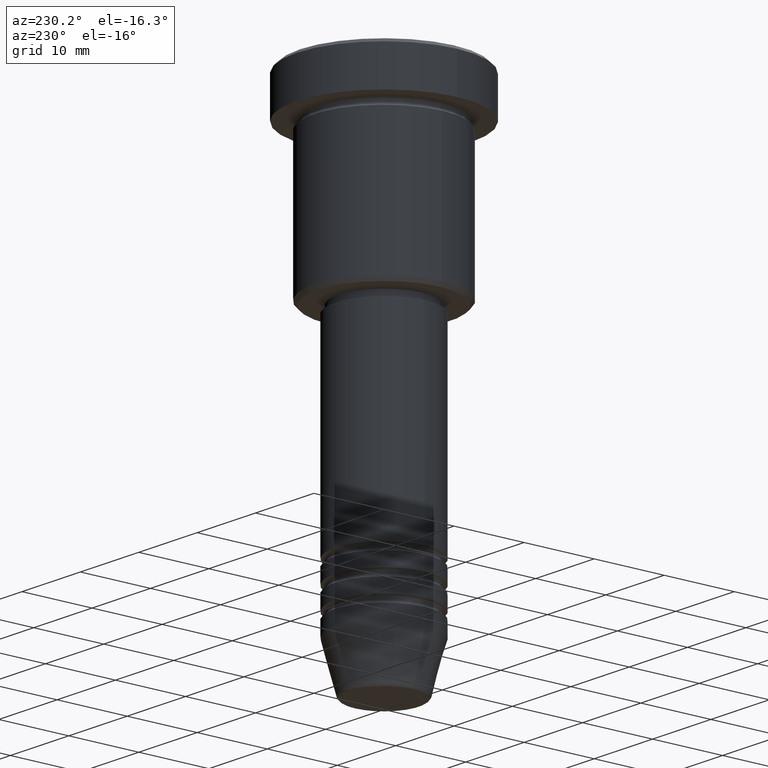
[diagram: clean part render]
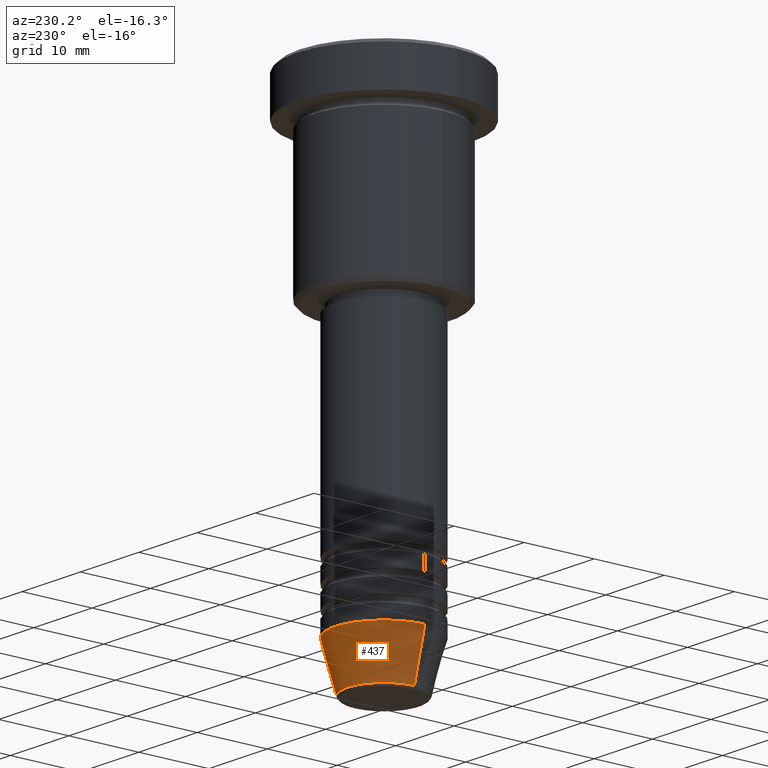
[diagram: same view with one face highlighted and labeled with its STEP entity id]
A machine part, auxiliary view. The second image highlights one B-rep face of the part: STEP entity #437.
In plain terms, the highlighted conical surface has half-angle 15 deg.
Its self-contained STEP definition (entity closure, byte-faithful):
#24 = CARTESIAN_POINT ( 'NONE',  ( 7.000000000000000000, 0.000000000000000000, -65.00000000000000000 ) ) ;
#43 = ORIENTED_EDGE ( 'NONE', *, *, #978, .T. ) ;
#101 = DIRECTION ( 'NONE',  ( -0.000000000000000000, -0.000000000000000000, 1.000000000000000000 ) ) ;
#121 = CIRCLE ( 'NONE', #790, 5.223655072137187716 ) ;
#147 = VERTEX_POINT ( 'NONE', #24 ) ;
#168 = DIRECTION ( 'NONE',  ( -0.000000000000000000, -0.000000000000000000, 1.000000000000000000 ) ) ;
#199 = VECTOR ( 'NONE', #747, 1000.000000000000000 ) ;
#215 = EDGE_LOOP ( 'NONE', ( #43, #891, #1156, #603 ) ) ;
#219 = CARTESIAN_POINT ( 'NONE',  ( 7.000000000000000000, 0.000000000000000000, -65.00000000000000000 ) ) ;
#437 = ADVANCED_FACE ( 'NONE', ( #935 ), #820, .T. ) ;
#504 = CARTESIAN_POINT ( 'NONE',  ( 0.000000000000000000, 0.000000000000000000, -71.62940952255127058 ) ) ;
#508 = VERTEX_POINT ( 'NONE', #1146 ) ;
#516 = VERTEX_POINT ( 'NONE', #608 ) ;
#573 = DIRECTION ( 'NONE',  ( 0.2588190451025214056, 0.000000000000000000, 0.9659258262890680902 ) ) ;
#603 = ORIENTED_EDGE ( 'NONE', *, *, #844, .F. ) ;
#608 = CARTESIAN_POINT ( 'NONE',  ( 5.223655072137187716, 0.000000000000000000, -71.62940952255127058 ) ) ;
#614 = CARTESIAN_POINT ( 'NONE',  ( 0.000000000000000000, 0.000000000000000000, -65.00000000000000000 ) ) ;
#651 = EDGE_CURVE ( 'NONE', #147, #508, #712, .T. ) ;
#683 = DIRECTION ( 'NONE',  ( -0.000000000000000000, -0.000000000000000000, 1.000000000000000000 ) ) ;
#689 = DIRECTION ( 'NONE',  ( 1.000000000000000000, 0.000000000000000000, 0.000000000000000000 ) ) ;
#693 = EDGE_CURVE ( 'NONE', #1177, #508, #1027, .T. ) ;
#712 = CIRCLE ( 'NONE', #1132, 7.000000000000000000 ) ;
#744 = AXIS2_PLACEMENT_3D ( 'NONE', #614, #683, #893 ) ;
#747 = DIRECTION ( 'NONE',  ( -0.2588190451025214056, 3.169619151431772953E-17, 0.9659258262890680902 ) ) ;
#752 = VECTOR ( 'NONE', #573, 1000.000000000000000 ) ;
#777 = LINE ( 'NONE', #219, #752 ) ;
#790 = AXIS2_PLACEMENT_3D ( 'NONE', #504, #168, #689 ) ;
#820 = CONICAL_SURFACE ( 'NONE', #744, 7.000000000000000000, 0.2617993877991501295 ) ;
#821 = CARTESIAN_POINT ( 'NONE',  ( -5.223655072137187716, 7.484830028987059188E-16, -71.62940952255127058 ) ) ;
#828 = CARTESIAN_POINT ( 'NONE',  ( 0.000000000000000000, 0.000000000000000000, -65.00000000000000000 ) ) ;
#844 = EDGE_CURVE ( 'NONE', #516, #147, #777, .T. ) ;
#891 = ORIENTED_EDGE ( 'NONE', *, *, #693, .T. ) ;
#893 = DIRECTION ( 'NONE',  ( 1.000000000000000000, 0.000000000000000000, 0.000000000000000000 ) ) ;
#918 = DIRECTION ( 'NONE',  ( 1.000000000000000000, 0.000000000000000000, 0.000000000000000000 ) ) ;
#935 = FACE_OUTER_BOUND ( 'NONE', #215, .T. ) ;
#978 = EDGE_CURVE ( 'NONE', #516, #1177, #121, .T. ) ;
#1027 = LINE ( 'NONE', #1107, #199 ) ;
#1107 = CARTESIAN_POINT ( 'NONE',  ( -7.000000000000000000, 8.572527594031473190E-16, -65.00000000000000000 ) ) ;
#1132 = AXIS2_PLACEMENT_3D ( 'NONE', #828, #101, #918 ) ;
#1146 = CARTESIAN_POINT ( 'NONE',  ( -7.000000000000000000, 8.572527594031473190E-16, -65.00000000000000000 ) ) ;
#1156 = ORIENTED_EDGE ( 'NONE', *, *, #651, .F. ) ;
#1177 = VERTEX_POINT ( 'NONE', #821 ) ;